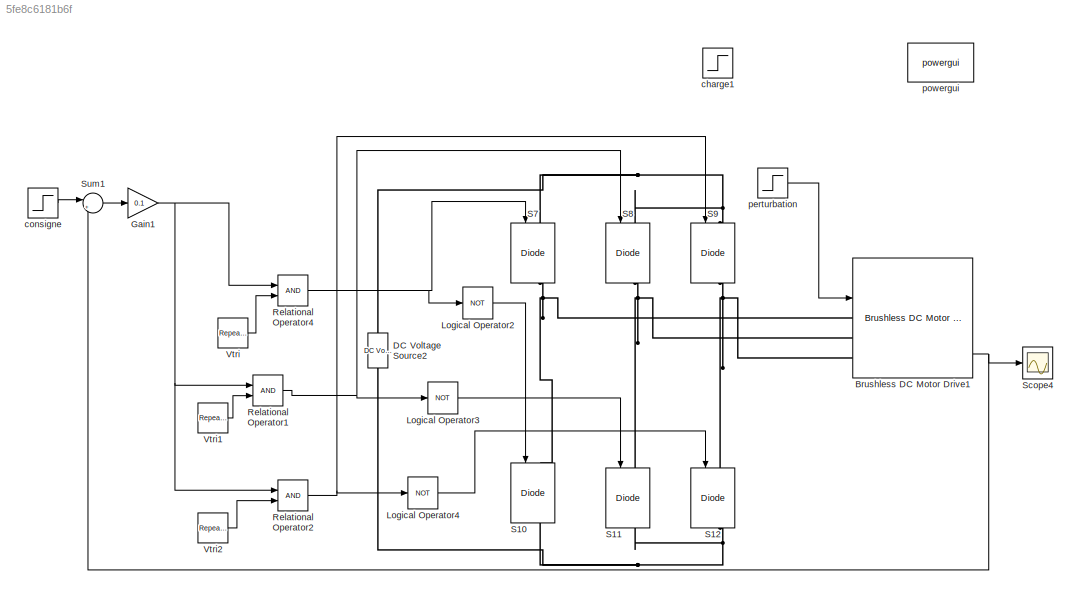
MODEL slx_5fe8c6181b6f
KIND model
BLOCK [Reference] Brushless DC Motor Drive1  REF=electricdrivelib/AC drives/Brushless DC Motor Drive
  AverageValue = off
  MechanicalLoad = Torque Tm
  Ports = [2, 4, 0, 0, 0, 3]
  SourceBlock = electricdrivelib/AC drives/Brushless DC Motor Drive
  SourceType = Brushless DC Motor Drive
  UserDataPersistent = on
  driveType = AC7
  showMaskWarnings = on
BLOCK [Reference] DC Voltage Source2  REF=powerlib/Electrical
Sources/DC Voltage Source
  Amplitude = 240
  Measurements = None
  Ports = [0, 0, 0, 0, 0, 1, 1]
  SourceBlock = powerlib/Electrical\nSources/DC Voltage Source
  SourceType = DC Voltage Source
BLOCK [Gain] Gain1
  Gain = 0.1
  OutDataTypeStr = Inherit: Inherit via internal rule
  ParamDataTypeStr = Inherit: Inherit via internal rule
  SaturateOnIntegerOverflow = off
BLOCK [Logic] Logical Operator2
  AllPortsSameDT = off
  Operator = NOT
  OutDataTypeStr = boolean
  Ports = [1, 1]
BLOCK [Logic] Logical Operator3
  AllPortsSameDT = off
  Operator = NOT
  OutDataTypeStr = boolean
  Ports = [1, 1]
BLOCK [Logic] Logical Operator4
  AllPortsSameDT = off
  Operator = NOT
  OutDataTypeStr = boolean
  Ports = [1, 1]
BLOCK [RelationalOperator] Relational Operator1
  InputSameDT = off
  OutDataTypeStr = boolean
  Ports = [2, 1]
BLOCK [RelationalOperator] Relational Operator2
  InputSameDT = off
  OutDataTypeStr = boolean
  Ports = [2, 1]
BLOCK [RelationalOperator] Relational Operator4
  InputSameDT = off
  OutDataTypeStr = boolean
  Ports = [2, 1]
BLOCK [Reference] S10  REF=powerlib/Power
Electronics/IGBT//Diode
  Cs = inf
  Measurements = on
  Ports = [1, 1, 0, 0, 0, 1, 1]
  Ron = 1e-3
  Rs = 1e5
  SourceBlock = powerlib/Power\nElectronics/IGBT//Diode
  SourceType = IGBT/Diode
BLOCK [Reference] S11  REF=powerlib/Power
Electronics/IGBT//Diode
  Cs = inf
  Measurements = on
  Ports = [1, 1, 0, 0, 0, 1, 1]
  Ron = 1e-3
  Rs = 1e5
  SourceBlock = powerlib/Power\nElectronics/IGBT//Diode
  SourceType = IGBT/Diode
BLOCK [Reference] S12  REF=powerlib/Power
Electronics/IGBT//Diode
  Cs = inf
  Measurements = on
  Ports = [1, 1, 0, 0, 0, 1, 1]
  Ron = 1e-3
  Rs = 1e5
  SourceBlock = powerlib/Power\nElectronics/IGBT//Diode
  SourceType = IGBT/Diode
BLOCK [Reference] S7  REF=powerlib/Power
Electronics/IGBT//Diode
  Cs = inf
  Measurements = on
  Ports = [1, 1, 0, 0, 0, 1, 1]
  Ron = 1e-3
  Rs = 1e5
  SourceBlock = powerlib/Power\nElectronics/IGBT//Diode
  SourceType = IGBT/Diode
BLOCK [Reference] S8  REF=powerlib/Power
Electronics/IGBT//Diode
  Cs = inf
  Measurements = on
  Ports = [1, 1, 0, 0, 0, 1, 1]
  Ron = 1e-3
  Rs = 1e5
  SourceBlock = powerlib/Power\nElectronics/IGBT//Diode
  SourceType = IGBT/Diode
BLOCK [Reference] S9  REF=powerlib/Power
Electronics/IGBT//Diode
  Cs = inf
  Measurements = on
  Ports = [1, 1, 0, 0, 0, 1, 1]
  Ron = 1e-3
  Rs = 1e5
  SourceBlock = powerlib/Power\nElectronics/IGBT//Diode
  SourceType = IGBT/Diode
BLOCK [Scope] Scope4
  Floating = off
  LimitDataPoints = off
  NumInputPorts = 1
  Ports = [1]
  SampleTime = 0
  SaveName = vitesse
  SaveToWorkspace = on
  ShowLegends = off
BLOCK [Sum] Sum1
  IconShape = round
  InputSameDT = off
  Inputs = |+-
  OutDataTypeStr = Inherit: Inherit via internal rule
  Ports = [2, 1]
  SaturateOnIntegerOverflow = off
BLOCK [Reference] Vtri  REF=simulink/Sources/Repeating
Sequence
  Ports = [0, 1]
  SourceBlock = simulink/Sources/Repeating\nSequence
  SourceType = Repeating table
  rep_seq_t = [0 (1/2) 1]*0.001
  rep_seq_y = [-1  1 -1] *240
BLOCK [Reference] Vtri1  REF=simulink/Sources/Repeating
Sequence
  Ports = [0, 1]
  SourceBlock = simulink/Sources/Repeating\nSequence
  SourceType = Repeating table
  rep_seq_t = [0 (1/6) 1]*0.001
  rep_seq_y = [-1  1 -1] *240
BLOCK [Reference] Vtri2  REF=simulink/Sources/Repeating
Sequence
  Ports = [0, 1]
  SourceBlock = simulink/Sources/Repeating\nSequence
  SourceType = Repeating table
  rep_seq_t = [0 (1/3) 1]*0.001
  rep_seq_y = [-1  1 -1] *240
BLOCK [Step] charge1
  After = 0.1
  SampleTime = 0
  Time = 0.1
BLOCK [Step] consigne
  After = 150
  SampleTime = 0
  Time = 0
BLOCK [Step] perturbation
  After = 10
  SampleTime = 0
  Time = 0.2
BLOCK [Reference] powergui  REF=powerlib/powergui
  DisableRonSwitches = off
  DisableSnubberDevices = off
  DisableVfSwitches = off
  DisplayEquations = off
  DisplayStyle = 1
  EnableUseOfTLC = off
  ErrMax = 1e-4
  Frange = [0:2:500]
  FreqAxis = off
  FunctionMessages = off
  HookPort = off
  Interpol = off
  Iterations = 50
  MaxFrequency = 1000
  Pbase = 100e6
  Ports = []
  Priority = 1
  ResistiveCurrentMeasurement = off
  RestoreLinks = warning
  RmsSteady = 1
  SPID = off
  SampleTime = 1e-6
  ShowGrid = off
  SolverType = Tustin
  SourceBlock = powerlib/powergui
  SourceType = PSB option menu block
  StartTime = 0.0
  SwTol = 0
  Ts = 0
  UnitsV = kV
  UnitsW = MW
  UserDataPersistent = on
  Xlog = on
  Ylog = off
  ZoomFFT = off
  cycles = 1
  display = off
  echomessages = off
  frequency = 60
  frequencyindice = 0
  frequencyindicesteady = 1
  fundamental = 60
  methode = off
  save = off
  variable = ZData
  x0status = blocks
NET Brushless DC Motor Drive1:4 -> Scope4:1, Sum1:2
NET Gain1:1 -> Relational Operator1:1, Relational Operator2:1, Relational Operator4:1
LINE Logical Operator2:1 -> S10:1
LINE Logical Operator3:1 -> S11:1
LINE Logical Operator4:1 -> S12:1
NET Relational Operator1:1 -> Logical Operator3:1, S8:1
NET Relational Operator2:1 -> Logical Operator4:1, S9:1
NET Relational Operator4:1 -> Logical Operator2:1, S7:1
LINE Sum1:1 -> Gain1:1
LINE Vtri1:1 -> Relational Operator1:2
LINE Vtri2:1 -> Relational Operator2:2
LINE Vtri:1 -> Relational Operator4:2
LINE consigne:1 -> Sum1:1
LINE perturbation:1 -> Brushless DC Motor Drive1:2
PNET net1: Brushless DC Motor Drive1:LConn1 -- S10:LConn1 -- S7:RConn1
PNET net2: Brushless DC Motor Drive1:LConn2 -- S11:LConn1 -- S8:RConn1
PNET net3: Brushless DC Motor Drive1:LConn3 -- S12:LConn1 -- S9:RConn1
PNET net4: DC Voltage Source2:LConn1 -- S10:RConn1 -- S11:RConn1 -- S12:RConn1
PNET net5: DC Voltage Source2:RConn1 -- S7:LConn1 -- S8:LConn1 -- S9:LConn1
note: NET lines group one-source signal fan-out (src -> all destinations, sorted); 1:1 wires keep LINE; PNET lines group multi-terminal physical nets as a canonical sorted terminal list (undirected conserving connections); 2-terminal nets keep the pairwise PLINE form
